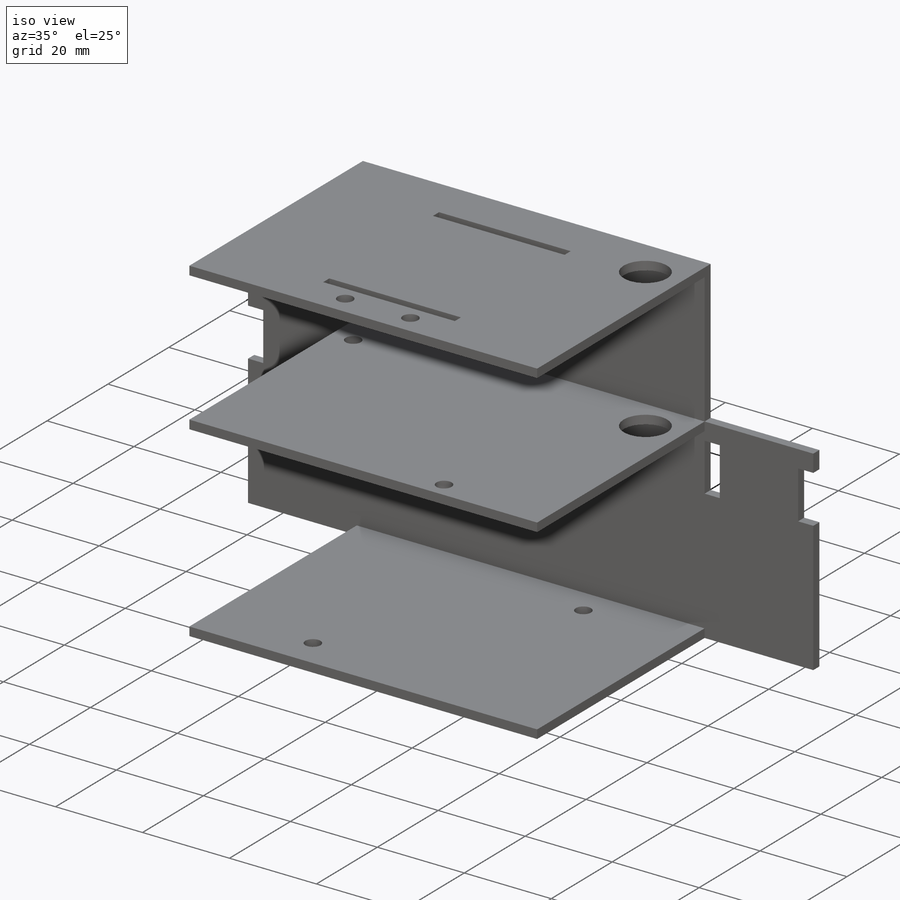
[diagram: iso view]
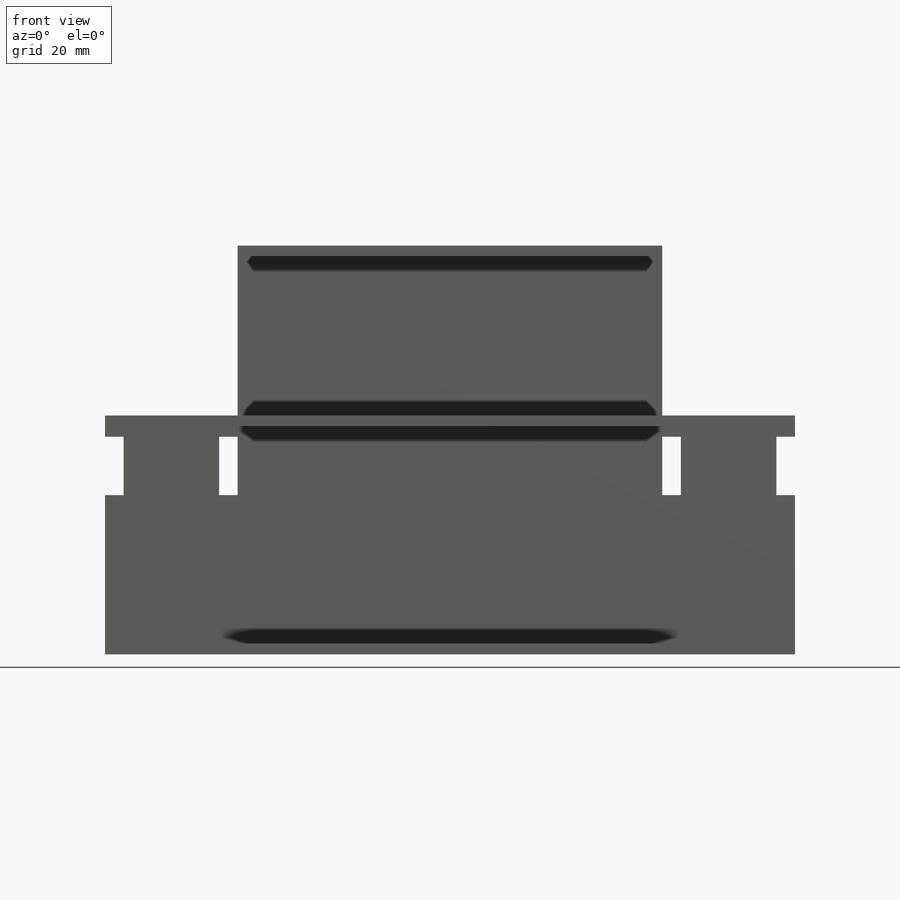
[diagram: front view]
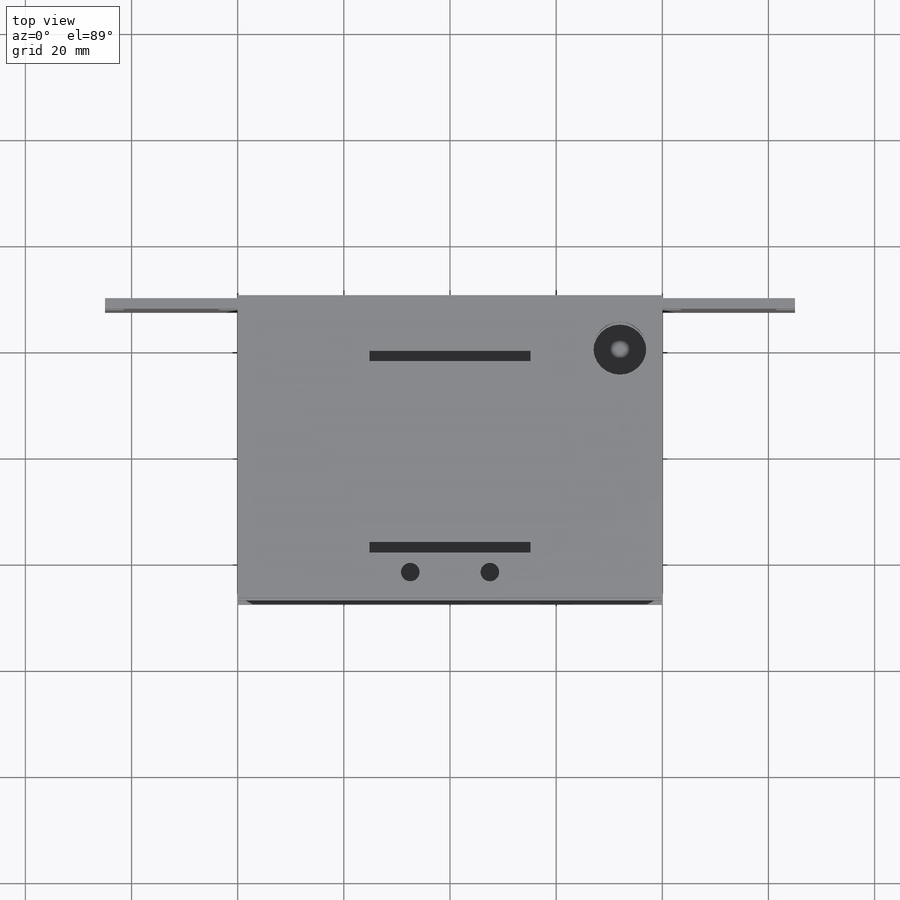
[diagram: top view]
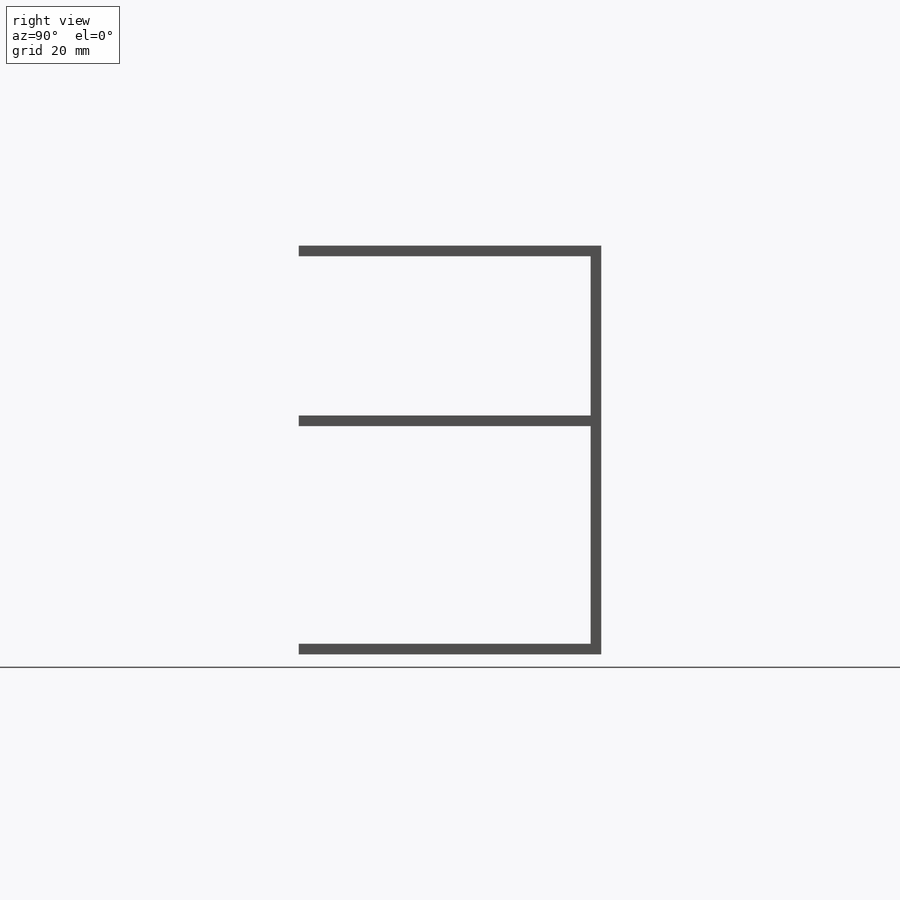
[diagram: right view]
SOLIDWORKS PART (.sldprt)
format: sldprt  version: not decoded by parser v0  size: 319,488 bytes
history: native  units: mm
features: sketch x10, extrude x5, cut_extrude x5, material x1 (+13 scaffold rows collapsed)
feature tree (34):
  scaffold x13  (default folders/planes/origin — collapsed)
  material  "Material <not specified>"
  sketch  "Sketch1"  dims[c1.D1=~112.473317mm c1.D2=~195.029489mm c2.D1=120.0mm c2.D2=55.0mm c3.D1=65.0mm c3.D3=65.0mm]
  sketch  "Sketch2"  dims[c1.D1=~5.95896mm c1.D2=120.0mm c2.D1=2.0mm c2.D2=130.0mm]
  extrude  "Boss-Extrude1"  Depth=2mm
  extrude  "Boss-Extrude2"  Depth=45mm
  sketch  "Sketch3"  dims[c1.D1=55.0mm c1.D2=~28.464394mm c2.D1=25.0mm c2.D2=55.0mm c2.D3=~28.645114mm c3.D2=25.0mm]
  cut_extrude  "Cut-Extrude1"  Depth=45mm
  sketch  "Sketch4"  dims[c1.D1=~9.939581mm c1.D2=~2.44079mm c2.D1=11.0mm c2.D2=3.5mm c2.D3=30.0mm c2.D4=18.0mm c2.D5=3.5mm]
  cut_extrude  "Cut-Extrude2"  Depth=2mm
  sketch  "Sketch6"  dims[c1.D1=~1.988319mm c1.D2=70.0mm c2.D1=2.0mm]
  extrude  "Boss-Extrude3"  Depth=55mm
  sketch  "Sketch7"  dims[c1.D1=3.5mm c1.D2=3.5mm c1.D5=10.0mm c1.D3=43.0mm c1.D4=51.0mm c2.D5=10.0mm c2.D6=8.0mm]
  cut_extrude  "Cut-Extrude3"  Depth=2mm
  sketch  "Sketch8"  dims[D1=2.0mm D2=80.0mm]
  extrude  "Boss-Extrude4"  Depth=30mm
  sketch  "Sketch9"  dims[D1=57.0mm D2=80.0mm]
  extrude  "Boss-Extrude5"  Depth=2mm
  sketch  "Sketch11"  dims[c1.D1=10.0mm c1.D3=3.5mm c2.D1=10.0mm c2.D2=8.0mm c2.D4=15.0mm c2.D5=~2.009391mm c2.D6=~30.278017mm c3.D5=~36.046154mm]
  cut_extrude  "Cut-Extrude4"  Depth=2mm
  sketch  "Sketch12"  dims[D1=3.5mm D2=3.5mm D3=53.0mm]
  cut_extrude  "Cut-Extrude5"  Depth=2mm
decode coverage: 20 of 20 modeling features carry decoded parameters
note: ~ marks probable driven/reference dimensions
note: suppression state not decoded; provenance and decode notes live in map.json
